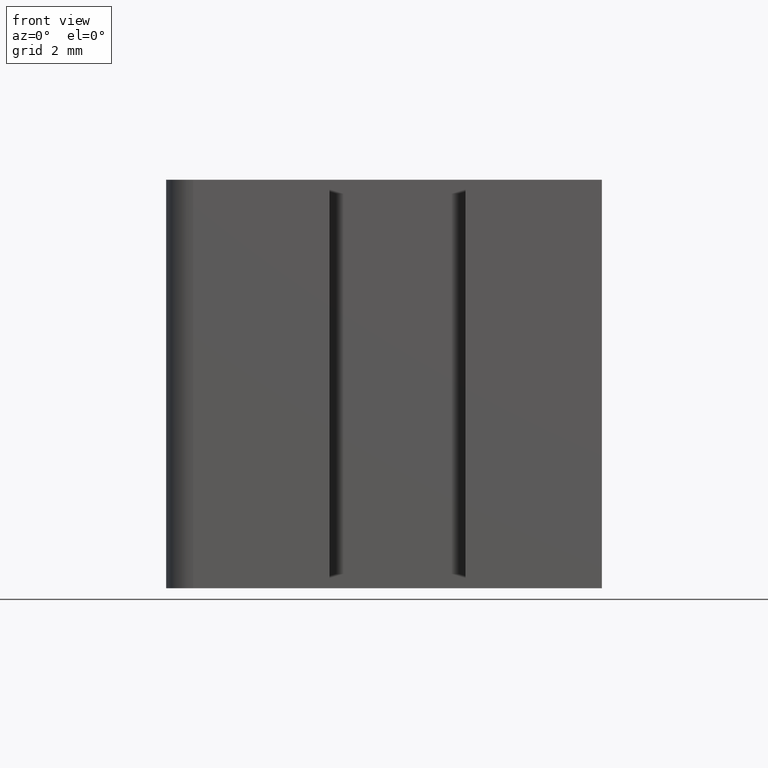
[diagram: clean part render]
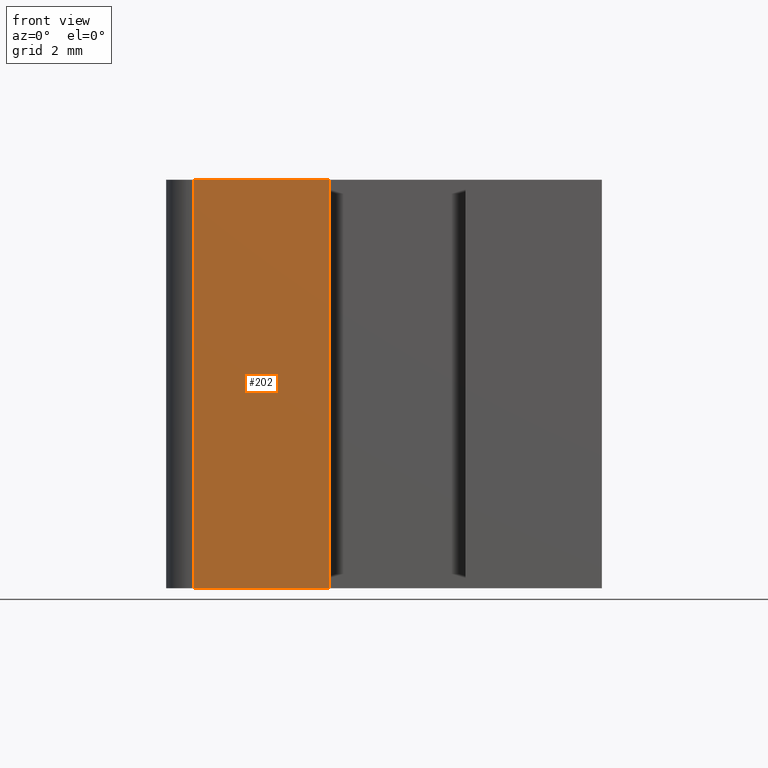
[diagram: same view with one face highlighted and labeled with its STEP entity id]
A machine part, front view. The second image highlights one B-rep face of the part: STEP entity #202.
In plain terms, the highlighted planar face has unit normal (0, -1, 0).
Its self-contained STEP definition (entity closure, byte-faithful):
#22=FACE_OUTER_BOUND('',#33,.T.);
#33=EDGE_LOOP('',(#156,#157,#158,#159));
#49=LINE('',#316,#72);
#57=LINE('',#335,#80);
#58=LINE('',#338,#81);
#59=LINE('',#339,#82);
#72=VECTOR('',#256,10.);
#80=VECTOR('',#274,10.);
#81=VECTOR('',#277,10.);
#82=VECTOR('',#278,10.);
#95=VERTEX_POINT('',#313);
#96=VERTEX_POINT('',#315);
#102=VERTEX_POINT('',#333);
#103=VERTEX_POINT('',#337);
#113=EDGE_CURVE('',#96,#95,#49,.T.);
#123=EDGE_CURVE('',#102,#95,#57,.T.);
#124=EDGE_CURVE('',#102,#103,#58,.T.);
#125=EDGE_CURVE('',#103,#96,#59,.T.);
#156=ORIENTED_EDGE('',*,*,#124,.T.);
#157=ORIENTED_EDGE('',*,*,#125,.T.);
#158=ORIENTED_EDGE('',*,*,#113,.T.);
#159=ORIENTED_EDGE('',*,*,#123,.F.);
#193=PLANE('',#238);
#202=ADVANCED_FACE('',(#22),#193,.T.);
#238=AXIS2_PLACEMENT_3D('',#336,#275,#276);
#256=DIRECTION('',(1.,1.09999327305771E-16,0.));
#274=DIRECTION('',(0.,0.,-1.));
#275=DIRECTION('center_axis',(1.09999327305771E-16,-1.,0.));
#276=DIRECTION('ref_axis',(0.,0.,-1.));
#277=DIRECTION('',(-1.,-1.09999327305771E-16,0.));
#278=DIRECTION('',(0.,0.,-1.));
#313=CARTESIAN_POINT('',(-10.,2.21533117346659E-15,-7.5));
#315=CARTESIAN_POINT('',(-15.,1.66533453693773E-15,-7.5));
#316=CARTESIAN_POINT('',(-10.,2.21533117346659E-15,-7.5));
#333=CARTESIAN_POINT('',(-10.,2.21533117346659E-15,7.5));
#335=CARTESIAN_POINT('',(-10.,2.21533117346659E-15,0.));
#336=CARTESIAN_POINT('Origin',(-10.,2.21533117346659E-15,0.));
#337=CARTESIAN_POINT('',(-15.,1.66533453693773E-15,7.5));
#338=CARTESIAN_POINT('',(-10.,2.21533117346659E-15,7.5));
#339=CARTESIAN_POINT('',(-15.,1.66533453693773E-15,0.));